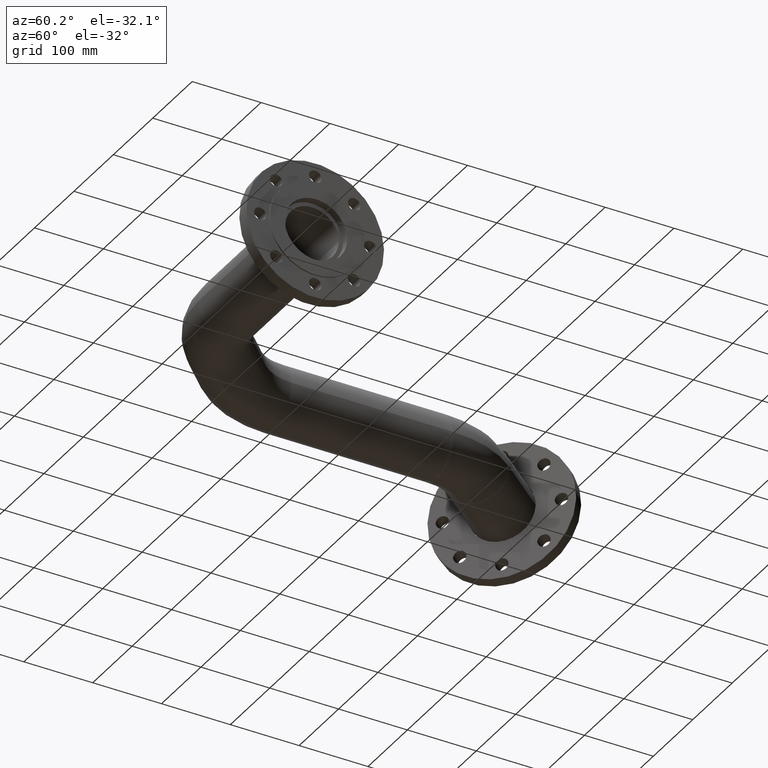
[diagram: clean part render]
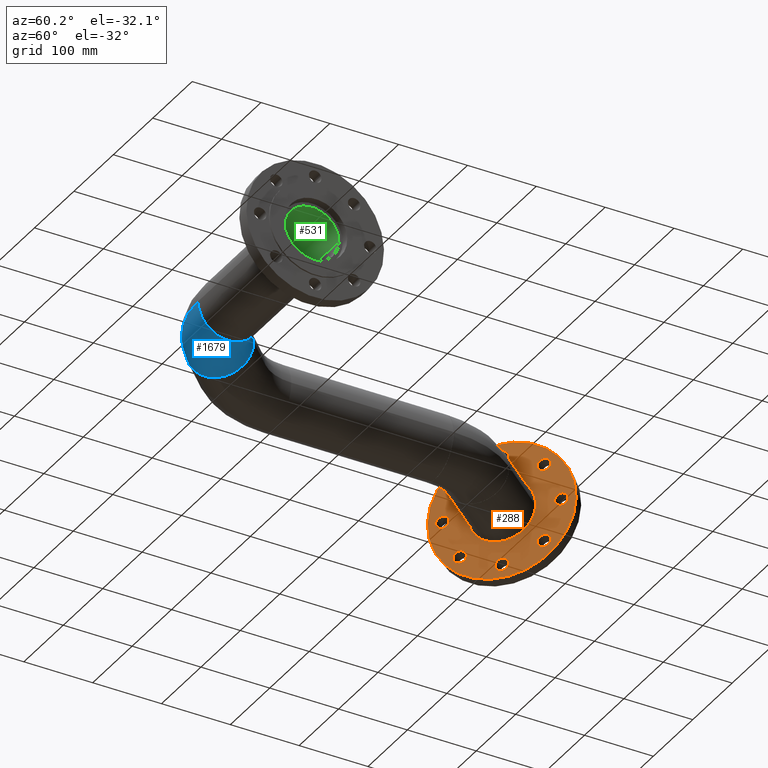
[diagram: same view with three faces highlighted in distinct colors, each labeled with its STEP entity id]
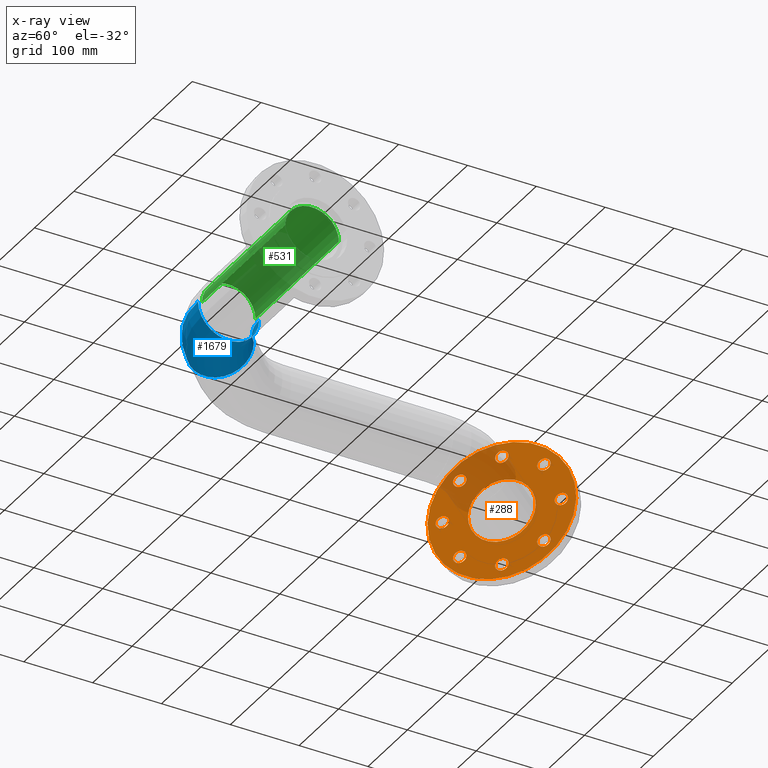
[diagram: x-ray of the same camera — body ghosted, the three highlighted faces saturated]
A machine part, auxiliary view with three faces highlighted in distinct colors.
The next image is the same camera in x-ray (body ghosted, the three faces saturated) — at least one of them is partly hidden behind the body in this view.
Their STEP definitions:

[orange] entity #288 — the highlighted planar face has unit normal (-0.6428, 0.766, -0).
#2 = DIRECTION ( 'NONE',  ( -7.395570986447001002E-32, -6.643687936158221410E-30, 1.000000000000000000 ) ) ;
#19 = AXIS2_PLACEMENT_3D ( 'NONE', #1262, #537, #1296 ) ;
#30 = DIRECTION ( 'NONE',  ( -7.395570986447001002E-32, -6.643687936158221410E-30, 1.000000000000000000 ) ) ;
#34 = EDGE_CURVE ( 'NONE', #871, #326, #1545, .T. ) ;
#52 = DIRECTION ( 'NONE',  ( 1.079383496163344971E-14, -1.000000000000000000, 0.000000000000000000 ) ) ;
#68 = ORIENTED_EDGE ( 'NONE', *, *, #2245, .T. ) ;
#106 = DIRECTION ( 'NONE',  ( -7.395570986447001002E-32, -6.643687936158221410E-30, 1.000000000000000000 ) ) ;
#108 = CIRCLE ( 'NONE', #1098, 9.000000000000014211 ) ;
#117 = VERTEX_POINT ( 'NONE', #1276 ) ;
#127 = VERTEX_POINT ( 'NONE', #1845 ) ;
#138 = DIRECTION ( 'NONE',  ( -1.000000000000000000, 0.000000000000000000, 0.000000000000000000 ) ) ;
#148 = CARTESIAN_POINT ( 'NONE',  ( -30.61467458920723317, -73.91036260090299947, -20.00000000000001776 ) ) ;
#166 = VERTEX_POINT ( 'NONE', #730 ) ;
#170 = CARTESIAN_POINT ( 'NONE',  ( -73.91036260090304211, 39.61467458920710527, -20.00000000000001776 ) ) ;
#190 = DIRECTION ( 'NONE',  ( -7.395570986447001002E-32, -6.643687936158221410E-30, 1.000000000000000000 ) ) ;
#194 = ORIENTED_EDGE ( 'NONE', *, *, #1569, .T. ) ;
#196 = EDGE_CURVE ( 'NONE', #2333, #1769, #893, .T. ) ;
#200 = CARTESIAN_POINT ( 'NONE',  ( -1.387778780781446307E-14, 0.000000000000000000, -20.00000000000001776 ) ) ;
#220 = VERTEX_POINT ( 'NONE', #1988 ) ;
#222 = FACE_BOUND ( 'NONE', #389, .T. ) ;
#246 = CARTESIAN_POINT ( 'NONE',  ( 21.61467458920747475, 73.91036260090280052, -20.00000000000007461 ) ) ;
#256 = ORIENTED_EDGE ( 'NONE', *, *, #196, .T. ) ;
#288 = ADVANCED_FACE ( 'NONE', ( #2094, #1905, #1333, #1691, #1159, #419, #1678, #222, #972, #1494 ), #2061, .F. ) ;
#300 = AXIS2_PLACEMENT_3D ( 'NONE', #803, #757, #397 ) ;
#326 = VERTEX_POINT ( 'NONE', #781 ) ;
#344 = CARTESIAN_POINT ( 'NONE',  ( -73.91036260090301369, 30.61467458920708395, -20.00000000000001776 ) ) ;
#380 = CARTESIAN_POINT ( 'NONE',  ( -30.61467458920717988, 73.91036260090262999, -20.00000000000002132 ) ) ;
#386 = EDGE_CURVE ( 'NONE', #1949, #1468, #643, .T. ) ;
#389 = EDGE_LOOP ( 'NONE', ( #561, #1457 ) ) ;
#397 = DIRECTION ( 'NONE',  ( -0.7071067811865416886, -0.7071067811865532349, 0.000000000000000000 ) ) ;
#419 = FACE_BOUND ( 'NONE', #1747, .T. ) ;
#420 = AXIS2_PLACEMENT_3D ( 'NONE', #344, #481, #1247 ) ;
#425 = CARTESIAN_POINT ( 'NONE',  ( -1.387778780781446307E-14, 0.000000000000000000, -20.00000000000001776 ) ) ;
#454 = CIRCLE ( 'NONE', #2343, 100.0000000000000284 ) ;
#456 = DIRECTION ( 'NONE',  ( -7.395570986447001002E-32, -6.643687936158221410E-30, 1.000000000000000000 ) ) ;
#468 = DIRECTION ( 'NONE',  ( -7.395570986447001002E-32, -6.643687936158221410E-30, 1.000000000000000000 ) ) ;
#473 = CARTESIAN_POINT ( 'NONE',  ( -1.387778780781446307E-14, 0.000000000000000000, -20.00000000000001776 ) ) ;
#481 = DIRECTION ( 'NONE',  ( -7.395570986447001002E-32, -6.643687936158221410E-30, 1.000000000000000000 ) ) ;
#485 = VERTEX_POINT ( 'NONE', #2123 ) ;
#499 = DIRECTION ( 'NONE',  ( 1.000000000000000000, 0.000000000000000000, 0.000000000000000000 ) ) ;
#510 = DIRECTION ( 'NONE',  ( -7.395570986447001002E-32, -6.643687936158221410E-30, 1.000000000000000000 ) ) ;
#517 = EDGE_CURVE ( 'NONE', #728, #1664, #1426, .T. ) ;
#537 = DIRECTION ( 'NONE',  ( -7.395570986447001002E-32, -6.643687936158221410E-30, 1.000000000000000000 ) ) ;
#543 = AXIS2_PLACEMENT_3D ( 'NONE', #1080, #1283, #2022 ) ;
#561 = ORIENTED_EDGE ( 'NONE', *, *, #517, .T. ) ;
#577 = EDGE_LOOP ( 'NONE', ( #1712, #2277 ) ) ;
#596 = ORIENTED_EDGE ( 'NONE', *, *, #1601, .T. ) ;
#641 = CARTESIAN_POINT ( 'NONE',  ( 30.61467458920748541, 73.91036260090280052, -20.00000000000007461 ) ) ;
#643 = CIRCLE ( 'NONE', #1209, 9.000000000000017764 ) ;
#650 = CIRCLE ( 'NONE', #1218, 9.000000000000014211 ) ;
#672 = AXIS2_PLACEMENT_3D ( 'NONE', #473, #846, #499 ) ;
#677 = CARTESIAN_POINT ( 'NONE',  ( 100.0000000000000142, 0.000000000000000000, -20.00000000000001776 ) ) ;
#680 = EDGE_CURVE ( 'NONE', #166, #485, #1210, .T. ) ;
#692 = AXIS2_PLACEMENT_3D ( 'NONE', #703, #1651, #1661 ) ;
#703 = CARTESIAN_POINT ( 'NONE',  ( -30.61467458920717988, 73.91036260090262999, -20.00000000000002132 ) ) ;
#716 = CARTESIAN_POINT ( 'NONE',  ( -73.91036260090298526, 21.61467458920707330, -20.00000000000001776 ) ) ;
#728 = VERTEX_POINT ( 'NONE', #2034 ) ;
#730 = CARTESIAN_POINT ( 'NONE',  ( 36.97863561988701520, -67.54640157022393510, -20.00000000000001421 ) ) ;
#735 = AXIS2_PLACEMENT_3D ( 'NONE', #641, #468, #1937 ) ;
#750 = ORIENTED_EDGE ( 'NONE', *, *, #911, .T. ) ;
#757 = DIRECTION ( 'NONE',  ( -7.395570986447001002E-32, -6.643687936158221410E-30, 1.000000000000000000 ) ) ;
#761 = DIRECTION ( 'NONE',  ( -7.395570986447001002E-32, -6.643687936158221410E-30, 1.000000000000000000 ) ) ;
#770 = AXIS2_PLACEMENT_3D ( 'NONE', #380, #761, #1364 ) ;
#781 = CARTESIAN_POINT ( 'NONE',  ( 73.91036260090326948, -21.61467458920663276, -20.00000000000001776 ) ) ;
#784 = CIRCLE ( 'NONE', #543, 9.000000000000017764 ) ;
#803 = CARTESIAN_POINT ( 'NONE',  ( 30.61467458920812490, -73.91036260090291421, -20.00000000000001421 ) ) ;
#824 = CIRCLE ( 'NONE', #420, 9.000000000000017764 ) ;
#834 = CARTESIAN_POINT ( 'NONE',  ( -24.25071355852825405, 80.27432363158156647, -20.00000000000002132 ) ) ;
#837 = CARTESIAN_POINT ( 'NONE',  ( 73.91036260090336896, -30.61467458920664342, -20.00000000000001776 ) ) ;
#846 = DIRECTION ( 'NONE',  ( -7.395570986447001002E-32, -6.643687936158221410E-30, 1.000000000000000000 ) ) ;
#848 = DIRECTION ( 'NONE',  ( 1.079383496163344971E-14, -1.000000000000000000, 0.000000000000000000 ) ) ;
#862 = CIRCLE ( 'NONE', #1510, 100.0000000000000284 ) ;
#871 = VERTEX_POINT ( 'NONE', #1305 ) ;
#874 = CARTESIAN_POINT ( 'NONE',  ( 80.27432363158187911, 24.25071355852899302, -20.00000000000001776 ) ) ;
#893 = CIRCLE ( 'NONE', #1822, 45.50000000000000711 ) ;
#911 = EDGE_CURVE ( 'NONE', #326, #871, #2378, .T. ) ;
#972 = FACE_OUTER_BOUND ( 'NONE', #2225, .T. ) ;
#986 = DIRECTION ( 'NONE',  ( 0.7071067811865560104, -0.7071067811865390240, 0.000000000000000000 ) ) ;
#1013 = CARTESIAN_POINT ( 'NONE',  ( 67.54640157022384983, 36.97863561988672387, -20.00000000000001776 ) ) ;
#1046 = EDGE_LOOP ( 'NONE', ( #1677, #2243 ) ) ;
#1070 = ORIENTED_EDGE ( 'NONE', *, *, #1331, .T. ) ;
#1080 = CARTESIAN_POINT ( 'NONE',  ( 73.91036260090285737, 30.61467458920785845, -20.00000000000001776 ) ) ;
#1087 = AXIS2_PLACEMENT_3D ( 'NONE', #2297, #106, #848 ) ;
#1088 = VERTEX_POINT ( 'NONE', #2084 ) ;
#1093 = ORIENTED_EDGE ( 'NONE', *, *, #1954, .T. ) ;
#1096 = CIRCLE ( 'NONE', #735, 9.000000000000010658 ) ;
#1098 = AXIS2_PLACEMENT_3D ( 'NONE', #148, #1460, #1104 ) ;
#1104 = DIRECTION ( 'NONE',  ( -1.000000000000000000, 0.000000000000000000, 0.000000000000000000 ) ) ;
#1107 = VERTEX_POINT ( 'NONE', #1013 ) ;
#1119 = VERTEX_POINT ( 'NONE', #2317 ) ;
#1134 = CARTESIAN_POINT ( 'NONE',  ( 2.636779683484746784E-13, 99.99999999999988631, -20.00000000000007461 ) ) ;
#1137 = CIRCLE ( 'NONE', #692, 9.000000000000012434 ) ;
#1140 = AXIS2_PLACEMENT_3D ( 'NONE', #1311, #1512, #2103 ) ;
#1148 = DIRECTION ( 'NONE',  ( 1.000000000000000000, 0.000000000000000000, -7.395570986446983486E-32 ) ) ;
#1153 = DIRECTION ( 'NONE',  ( 1.000000000000000000, 0.000000000000000000, 0.000000000000000000 ) ) ;
#1159 = FACE_BOUND ( 'NONE', #577, .T. ) ;
#1166 = EDGE_LOOP ( 'NONE', ( #1093, #1366 ) ) ;
#1176 = DIRECTION ( 'NONE',  ( 1.000000000000000000, 0.000000000000000000, 0.000000000000000000 ) ) ;
#1179 = EDGE_LOOP ( 'NONE', ( #1968, #68 ) ) ;
#1209 = AXIS2_PLACEMENT_3D ( 'NONE', #1894, #2281, #2071 ) ;
#1210 = CIRCLE ( 'NONE', #19, 9.000000000000012434 ) ;
#1211 = AXIS2_PLACEMENT_3D ( 'NONE', #1274, #2006, #986 ) ;
#1218 = AXIS2_PLACEMENT_3D ( 'NONE', #1281, #2352, #138 ) ;
#1227 = ORIENTED_EDGE ( 'NONE', *, *, #2196, .F. ) ;
#1239 = ORIENTED_EDGE ( 'NONE', *, *, #1757, .T. ) ;
#1247 = DIRECTION ( 'NONE',  ( -3.083952846180984167E-15, 1.000000000000000000, 0.000000000000000000 ) ) ;
#1262 = CARTESIAN_POINT ( 'NONE',  ( 30.61467458920812490, -73.91036260090291421, -20.00000000000001421 ) ) ;
#1274 = CARTESIAN_POINT ( 'NONE',  ( 73.91036260090285737, 30.61467458920785845, -20.00000000000001776 ) ) ;
#1276 = CARTESIAN_POINT ( 'NONE',  ( -21.61467458920722251, -73.91036260090299947, -20.00000000000001776 ) ) ;
#1281 = CARTESIAN_POINT ( 'NONE',  ( -30.61467458920723317, -73.91036260090299947, -20.00000000000001776 ) ) ;
#1283 = DIRECTION ( 'NONE',  ( -7.395570986447001002E-32, -6.643687936158221410E-30, 1.000000000000000000 ) ) ;
#1290 = AXIS2_PLACEMENT_3D ( 'NONE', #1683, #2, #1899 ) ;
#1296 = DIRECTION ( 'NONE',  ( -0.7071067811865416886, -0.7071067811865532349, 0.000000000000000000 ) ) ;
#1298 = EDGE_LOOP ( 'NONE', ( #194, #1239 ) ) ;
#1305 = CARTESIAN_POINT ( 'NONE',  ( 73.91036260090345422, -39.61467458920665763, -20.00000000000001776 ) ) ;
#1311 = CARTESIAN_POINT ( 'NONE',  ( -73.91036260090277210, -30.61467458920753870, -20.00000000000003197 ) ) ;
#1315 = EDGE_LOOP ( 'NONE', ( #256, #1070 ) ) ;
#1331 = EDGE_CURVE ( 'NONE', #1769, #2333, #1732, .T. ) ;
#1333 = FACE_BOUND ( 'NONE', #1179, .T. ) ;
#1364 = DIRECTION ( 'NONE',  ( 0.7071067811865463515, 0.7071067811865486830, 0.000000000000000000 ) ) ;
#1366 = ORIENTED_EDGE ( 'NONE', *, *, #2354, .T. ) ;
#1391 = VERTEX_POINT ( 'NONE', #874 ) ;
#1400 = VERTEX_POINT ( 'NONE', #677 ) ;
#1413 = VERTEX_POINT ( 'NONE', #834 ) ;
#1426 = CIRCLE ( 'NONE', #2376, 9.000000000000010658 ) ;
#1457 = ORIENTED_EDGE ( 'NONE', *, *, #1799, .T. ) ;
#1460 = DIRECTION ( 'NONE',  ( -7.395570986447001002E-32, -6.643687936158221410E-30, 1.000000000000000000 ) ) ;
#1468 = VERTEX_POINT ( 'NONE', #716 ) ;
#1494 = FACE_BOUND ( 'NONE', #1315, .T. ) ;
#1507 = EDGE_CURVE ( 'NONE', #1391, #1107, #784, .T. ) ;
#1510 = AXIS2_PLACEMENT_3D ( 'NONE', #200, #190, #1176 ) ;
#1512 = DIRECTION ( 'NONE',  ( -7.395570986447001002E-32, -6.643687936158221410E-30, 1.000000000000000000 ) ) ;
#1545 = CIRCLE ( 'NONE', #1087, 9.000000000000014211 ) ;
#1569 = EDGE_CURVE ( 'NONE', #1413, #220, #1137, .T. ) ;
#1601 = EDGE_CURVE ( 'NONE', #1107, #1391, #1622, .T. ) ;
#1622 = CIRCLE ( 'NONE', #1211, 9.000000000000017764 ) ;
#1626 = CIRCLE ( 'NONE', #300, 9.000000000000012434 ) ;
#1651 = DIRECTION ( 'NONE',  ( -7.395570986447001002E-32, -6.643687936158221410E-30, 1.000000000000000000 ) ) ;
#1661 = DIRECTION ( 'NONE',  ( 0.7071067811865463515, 0.7071067811865486830, 0.000000000000000000 ) ) ;
#1664 = VERTEX_POINT ( 'NONE', #246 ) ;
#1669 = CIRCLE ( 'NONE', #1140, 9.000000000000021316 ) ;
#1673 = ORIENTED_EDGE ( 'NONE', *, *, #34, .T. ) ;
#1677 = ORIENTED_EDGE ( 'NONE', *, *, #386, .T. ) ;
#1678 = FACE_BOUND ( 'NONE', #2154, .T. ) ;
#1683 = CARTESIAN_POINT ( 'NONE',  ( -73.91036260090277210, -30.61467458920753870, -20.00000000000003197 ) ) ;
#1691 = FACE_BOUND ( 'NONE', #1166, .T. ) ;
#1712 = ORIENTED_EDGE ( 'NONE', *, *, #2114, .T. ) ;
#1724 = ORIENTED_EDGE ( 'NONE', *, *, #1507, .T. ) ;
#1732 = CIRCLE ( 'NONE', #672, 45.50000000000000711 ) ;
#1742 = AXIS2_PLACEMENT_3D ( 'NONE', #837, #456, #52 ) ;
#1747 = EDGE_LOOP ( 'NONE', ( #1673, #750 ) ) ;
#1757 = EDGE_CURVE ( 'NONE', #220, #1413, #1826, .T. ) ;
#1769 = VERTEX_POINT ( 'NONE', #2107 ) ;
#1799 = EDGE_CURVE ( 'NONE', #1664, #728, #1096, .T. ) ;
#1822 = AXIS2_PLACEMENT_3D ( 'NONE', #2204, #510, #2009 ) ;
#1826 = CIRCLE ( 'NONE', #770, 9.000000000000012434 ) ;
#1845 = CARTESIAN_POINT ( 'NONE',  ( -39.61467458920724738, -73.91036260090299947, -20.00000000000001776 ) ) ;
#1884 = DIRECTION ( 'NONE',  ( 7.395570986446983486E-32, -6.643687936158222812E-30, 1.000000000000000000 ) ) ;
#1894 = CARTESIAN_POINT ( 'NONE',  ( -73.91036260090301369, 30.61467458920708395, -20.00000000000001776 ) ) ;
#1899 = DIRECTION ( 'NONE',  ( -0.7071067811865510144, 0.7071067811865441310, 0.000000000000000000 ) ) ;
#1905 = FACE_BOUND ( 'NONE', #1046, .T. ) ;
#1932 = DIRECTION ( 'NONE',  ( 1.000000000000000000, 0.000000000000000000, 0.000000000000000000 ) ) ;
#1937 = DIRECTION ( 'NONE',  ( 1.000000000000000000, 0.000000000000000000, 0.000000000000000000 ) ) ;
#1949 = VERTEX_POINT ( 'NONE', #170 ) ;
#1954 = EDGE_CURVE ( 'NONE', #127, #117, #108, .T. ) ;
#1968 = ORIENTED_EDGE ( 'NONE', *, *, #2128, .T. ) ;
#1970 = DIRECTION ( 'NONE',  ( -7.395570986447001002E-32, -6.643687936158221410E-30, 1.000000000000000000 ) ) ;
#1979 = CIRCLE ( 'NONE', #1290, 9.000000000000021316 ) ;
#1988 = CARTESIAN_POINT ( 'NONE',  ( -36.97863561988611281, 67.54640157022367930, -20.00000000000002132 ) ) ;
#2001 = CARTESIAN_POINT ( 'NONE',  ( -67.54640157022382141, -36.97863561988644676, -20.00000000000003197 ) ) ;
#2006 = DIRECTION ( 'NONE',  ( -7.395570986447001002E-32, -6.643687936158221410E-30, 1.000000000000000000 ) ) ;
#2009 = DIRECTION ( 'NONE',  ( 1.000000000000000000, 0.000000000000000000, 0.000000000000000000 ) ) ;
#2022 = DIRECTION ( 'NONE',  ( 0.7071067811865560104, -0.7071067811865390240, 0.000000000000000000 ) ) ;
#2034 = CARTESIAN_POINT ( 'NONE',  ( 39.61467458920749607, 73.91036260090280052, -20.00000000000007461 ) ) ;
#2061 = PLANE ( 'NONE',  #2138 ) ;
#2070 = VERTEX_POINT ( 'NONE', #2001 ) ;
#2071 = DIRECTION ( 'NONE',  ( -3.083952846180984167E-15, 1.000000000000000000, 0.000000000000000000 ) ) ;
#2084 = CARTESIAN_POINT ( 'NONE',  ( -80.27432363158175121, -24.25071355852862709, -20.00000000000003197 ) ) ;
#2094 = FACE_BOUND ( 'NONE', #1298, .T. ) ;
#2103 = DIRECTION ( 'NONE',  ( -0.7071067811865510144, 0.7071067811865441310, 0.000000000000000000 ) ) ;
#2107 = CARTESIAN_POINT ( 'NONE',  ( -45.50000000000001421, 5.572142936120514716E-15, -20.00000000000001776 ) ) ;
#2114 = EDGE_CURVE ( 'NONE', #485, #166, #1626, .T. ) ;
#2123 = CARTESIAN_POINT ( 'NONE',  ( 24.25071355852924171, -80.27432363158190753, -20.00000000000001421 ) ) ;
#2128 = EDGE_CURVE ( 'NONE', #1088, #2070, #1669, .T. ) ;
#2138 = AXIS2_PLACEMENT_3D ( 'NONE', #1134, #1884, #1148 ) ;
#2154 = EDGE_LOOP ( 'NONE', ( #1724, #596 ) ) ;
#2163 = EDGE_CURVE ( 'NONE', #1400, #1119, #454, .T. ) ;
#2186 = ORIENTED_EDGE ( 'NONE', *, *, #2163, .F. ) ;
#2196 = EDGE_CURVE ( 'NONE', #1119, #1400, #862, .T. ) ;
#2204 = CARTESIAN_POINT ( 'NONE',  ( -1.387778780781446307E-14, 0.000000000000000000, -20.00000000000001776 ) ) ;
#2225 = EDGE_LOOP ( 'NONE', ( #2186, #1227 ) ) ;
#2243 = ORIENTED_EDGE ( 'NONE', *, *, #2323, .T. ) ;
#2245 = EDGE_CURVE ( 'NONE', #2070, #1088, #1979, .T. ) ;
#2277 = ORIENTED_EDGE ( 'NONE', *, *, #680, .T. ) ;
#2281 = DIRECTION ( 'NONE',  ( -7.395570986447001002E-32, -6.643687936158221410E-30, 1.000000000000000000 ) ) ;
#2297 = CARTESIAN_POINT ( 'NONE',  ( 73.91036260090336896, -30.61467458920664342, -20.00000000000001776 ) ) ;
#2317 = CARTESIAN_POINT ( 'NONE',  ( -100.0000000000000142, 1.224646799147358424E-14, -20.00000000000001776 ) ) ;
#2323 = EDGE_CURVE ( 'NONE', #1468, #1949, #824, .T. ) ;
#2327 = CARTESIAN_POINT ( 'NONE',  ( 30.61467458920748541, 73.91036260090280052, -20.00000000000007461 ) ) ;
#2333 = VERTEX_POINT ( 'NONE', #2371 ) ;
#2343 = AXIS2_PLACEMENT_3D ( 'NONE', #425, #30, #1153 ) ;
#2352 = DIRECTION ( 'NONE',  ( -7.395570986447001002E-32, -6.643687936158221410E-30, 1.000000000000000000 ) ) ;
#2354 = EDGE_CURVE ( 'NONE', #117, #127, #650, .T. ) ;
#2371 = CARTESIAN_POINT ( 'NONE',  ( 45.49999999999999289, 0.000000000000000000, -20.00000000000001776 ) ) ;
#2376 = AXIS2_PLACEMENT_3D ( 'NONE', #2327, #1970, #1932 ) ;
#2378 = CIRCLE ( 'NONE', #1742, 9.000000000000014211 ) ;

[blue] entity #1679 — the highlighted toroidal blend (fillet) surface has major radius 114.5 mm and minor (blend) radius 44.45 mm.
#146 = AXIS2_PLACEMENT_3D ( 'NONE', #1853, #173, #2387 ) ;
#173 = DIRECTION ( 'NONE',  ( 0.000000000000000000, 0.000000000000000000, 1.000000000000000000 ) ) ;
#235 = CARTESIAN_POINT ( 'NONE',  ( 0.000000000000000000, 158.9500000000000171, 0.000000000000000000 ) ) ;
#297 = VERTEX_POINT ( 'NONE', #235 ) ;
#430 = ORIENTED_EDGE ( 'NONE', *, *, #1722, .F. ) ;
#452 = CIRCLE ( 'NONE', #1785, 44.45000000000000995 ) ;
#488 = EDGE_CURVE ( 'NONE', #297, #1517, #1245, .T. ) ;
#520 = CARTESIAN_POINT ( 'NONE',  ( 0.000000000000000000, 70.04999999999999716, -5.443555022209988064E-15 ) ) ;
#528 = AXIS2_PLACEMENT_3D ( 'NONE', #646, #1542, #1576 ) ;
#530 = AXIS2_PLACEMENT_3D ( 'NONE', #1880, #1192, #1552 ) ;
#597 = CARTESIAN_POINT ( 'NONE',  ( 0.000000000000000000, 114.5000000000000000, 0.000000000000000000 ) ) ;
#646 = CARTESIAN_POINT ( 'NONE',  ( 0.000000000000000000, 0.000000000000000000, 0.000000000000000000 ) ) ;
#809 = VERTEX_POINT ( 'NONE', #520 ) ;
#890 = CARTESIAN_POINT ( 'NONE',  ( -80.96372644585925116, 80.96372644586013223, 0.000000000000000000 ) ) ;
#1132 = VERTEX_POINT ( 'NONE', #2269 ) ;
#1156 = DIRECTION ( 'NONE',  ( 1.000000000000000000, 0.000000000000000000, 0.000000000000000000 ) ) ;
#1192 = DIRECTION ( 'NONE',  ( 0.000000000000000000, 0.000000000000000000, 1.000000000000000000 ) ) ;
#1245 = CIRCLE ( 'NONE', #528, 158.9500000000000171 ) ;
#1313 = ORIENTED_EDGE ( 'NONE', *, *, #488, .T. ) ;
#1473 = TOROIDAL_SURFACE ( 'NONE', #530, 114.5000000000000000, 44.45000000000000995 ) ;
#1515 = FACE_OUTER_BOUND ( 'NONE', #1897, .T. ) ;
#1517 = VERTEX_POINT ( 'NONE', #2035 ) ;
#1538 = DIRECTION ( 'NONE',  ( 0.000000000000000000, 0.000000000000000000, -1.000000000000000000 ) ) ;
#1542 = DIRECTION ( 'NONE',  ( 0.000000000000000000, 0.000000000000000000, 1.000000000000000000 ) ) ;
#1552 = DIRECTION ( 'NONE',  ( 1.000000000000000000, 0.000000000000000000, 0.000000000000000000 ) ) ;
#1566 = EDGE_CURVE ( 'NONE', #809, #1132, #2099, .T. ) ;
#1576 = DIRECTION ( 'NONE',  ( 1.000000000000000000, 0.000000000000000000, 0.000000000000000000 ) ) ;
#1588 = DIRECTION ( 'NONE',  ( 0.7071067811865513475, 0.7071067811865436870, 0.000000000000000000 ) ) ;
#1679 = ADVANCED_FACE ( 'NONE', ( #1515 ), #1473, .T. ) ;
#1722 = EDGE_CURVE ( 'NONE', #297, #809, #452, .T. ) ;
#1785 = AXIS2_PLACEMENT_3D ( 'NONE', #597, #1156, #1538 ) ;
#1815 = DIRECTION ( 'NONE',  ( 0.000000000000000000, 0.000000000000000000, -1.000000000000000000 ) ) ;
#1831 = CIRCLE ( 'NONE', #1911, 44.45000000000000995 ) ;
#1853 = CARTESIAN_POINT ( 'NONE',  ( 0.000000000000000000, 0.000000000000000000, -5.443555022209986486E-15 ) ) ;
#1880 = CARTESIAN_POINT ( 'NONE',  ( 0.000000000000000000, 0.000000000000000000, 0.000000000000000000 ) ) ;
#1897 = EDGE_LOOP ( 'NONE', ( #430, #1313, #1921, #2315 ) ) ;
#1911 = AXIS2_PLACEMENT_3D ( 'NONE', #890, #1588, #1815 ) ;
#1921 = ORIENTED_EDGE ( 'NONE', *, *, #2348, .T. ) ;
#2035 = CARTESIAN_POINT ( 'NONE',  ( -112.3946228696011218, 112.3946228696023297, 0.000000000000000000 ) ) ;
#2099 = CIRCLE ( 'NONE', #146, 70.04999999999999716 ) ;
#2269 = CARTESIAN_POINT ( 'NONE',  ( -49.53283002211739472, 49.53283002211792763, -5.443555022209986486E-15 ) ) ;
#2315 = ORIENTED_EDGE ( 'NONE', *, *, #1566, .F. ) ;
#2348 = EDGE_CURVE ( 'NONE', #1517, #1132, #1831, .T. ) ;
#2387 = DIRECTION ( 'NONE',  ( 1.000000000000000000, 0.000000000000000000, 0.000000000000000000 ) ) ;

[green] entity #531 — the highlighted cylindrical surface (edge-blend (fillet) strip) has radius 38.95 mm, axis along (1, 0, 0).
#5 = CARTESIAN_POINT ( 'NONE',  ( 105.8045635173699992, -38.95000000000000995, 4.769999282678943960E-15 ) ) ;
#13 = VECTOR ( 'NONE', #1708, 1000.000000000000000 ) ;
#18 = LINE ( 'NONE', #1714, #1016 ) ;
#47 = EDGE_CURVE ( 'NONE', #1035, #847, #2177, .T. ) ;
#114 = DIRECTION ( 'NONE',  ( 0.000000000000000000, 1.000000000000000000, 0.000000000000000000 ) ) ;
#131 = CIRCLE ( 'NONE', #2125, 38.95000000000003126 ) ;
#210 = CARTESIAN_POINT ( 'NONE',  ( -105.8045635173704966, -38.95000000000003837, 4.769999282678943960E-15 ) ) ;
#216 = DIRECTION ( 'NONE',  ( 1.000000000000000000, 1.224646799147352961E-16, -0.000000000000000000 ) ) ;
#231 = VERTEX_POINT ( 'NONE', #1857 ) ;
#309 = CARTESIAN_POINT ( 'NONE',  ( -105.8045635173704966, -1.203685620153159673E-14, 0.000000000000000000 ) ) ;
#531 = ADVANCED_FACE ( 'NONE', ( #1589 ), #1228, .F. ) ;
#613 = CARTESIAN_POINT ( 'NONE',  ( -105.8045635173704966, -1.203685620153159673E-14, 0.000000000000000000 ) ) ;
#647 = AXIS2_PLACEMENT_3D ( 'NONE', #613, #2353, #114 ) ;
#687 = DIRECTION ( 'NONE',  ( 0.000000000000000000, -1.000000000000000000, 0.000000000000000000 ) ) ;
#762 = ORIENTED_EDGE ( 'NONE', *, *, #1654, .T. ) ;
#788 = DIRECTION ( 'NONE',  ( 0.000000000000000000, -1.000000000000000000, 0.000000000000000000 ) ) ;
#847 = VERTEX_POINT ( 'NONE', #5 ) ;
#1016 = VECTOR ( 'NONE', #216, 1000.000000000000000 ) ;
#1035 = VERTEX_POINT ( 'NONE', #1474 ) ;
#1059 = ORIENTED_EDGE ( 'NONE', *, *, #1395, .T. ) ;
#1228 = CYLINDRICAL_SURFACE ( 'NONE', #647, 38.95000000000002416 ) ;
#1337 = ORIENTED_EDGE ( 'NONE', *, *, #47, .F. ) ;
#1354 = VERTEX_POINT ( 'NONE', #1591 ) ;
#1395 = EDGE_CURVE ( 'NONE', #1035, #1354, #131, .T. ) ;
#1474 = CARTESIAN_POINT ( 'NONE',  ( -105.8045635173704966, -38.95000000000003837, 4.769999282678945538E-15 ) ) ;
#1475 = AXIS2_PLACEMENT_3D ( 'NONE', #1733, #1886, #788 ) ;
#1589 = FACE_OUTER_BOUND ( 'NONE', #1792, .T. ) ;
#1591 = CARTESIAN_POINT ( 'NONE',  ( -105.8045635173704966, 38.95000000000000995, 0.000000000000000000 ) ) ;
#1600 = DIRECTION ( 'NONE',  ( -1.000000000000000000, -1.110223024625156294E-16, 0.000000000000000000 ) ) ;
#1654 = EDGE_CURVE ( 'NONE', #1354, #231, #18, .T. ) ;
#1708 = DIRECTION ( 'NONE',  ( 1.000000000000000000, 1.224646799147352961E-16, -0.000000000000000000 ) ) ;
#1714 = CARTESIAN_POINT ( 'NONE',  ( -105.8045635173704966, 38.95000000000000995, 0.000000000000000000 ) ) ;
#1733 = CARTESIAN_POINT ( 'NONE',  ( 105.8045635173699992, 1.387778780781445676E-14, 0.000000000000000000 ) ) ;
#1792 = EDGE_LOOP ( 'NONE', ( #1337, #1059, #762, #2216 ) ) ;
#1857 = CARTESIAN_POINT ( 'NONE',  ( 105.8045635173699992, 38.95000000000003837, 0.000000000000000000 ) ) ;
#1886 = DIRECTION ( 'NONE',  ( -1.000000000000000000, -1.110223024625156294E-16, 0.000000000000000000 ) ) ;
#2125 = AXIS2_PLACEMENT_3D ( 'NONE', #309, #1600, #687 ) ;
#2168 = EDGE_CURVE ( 'NONE', #847, #231, #2182, .T. ) ;
#2177 = LINE ( 'NONE', #210, #13 ) ;
#2182 = CIRCLE ( 'NONE', #1475, 38.95000000000003126 ) ;
#2216 = ORIENTED_EDGE ( 'NONE', *, *, #2168, .F. ) ;
#2353 = DIRECTION ( 'NONE',  ( 1.000000000000000000, 1.224646799147352961E-16, -0.000000000000000000 ) ) ;